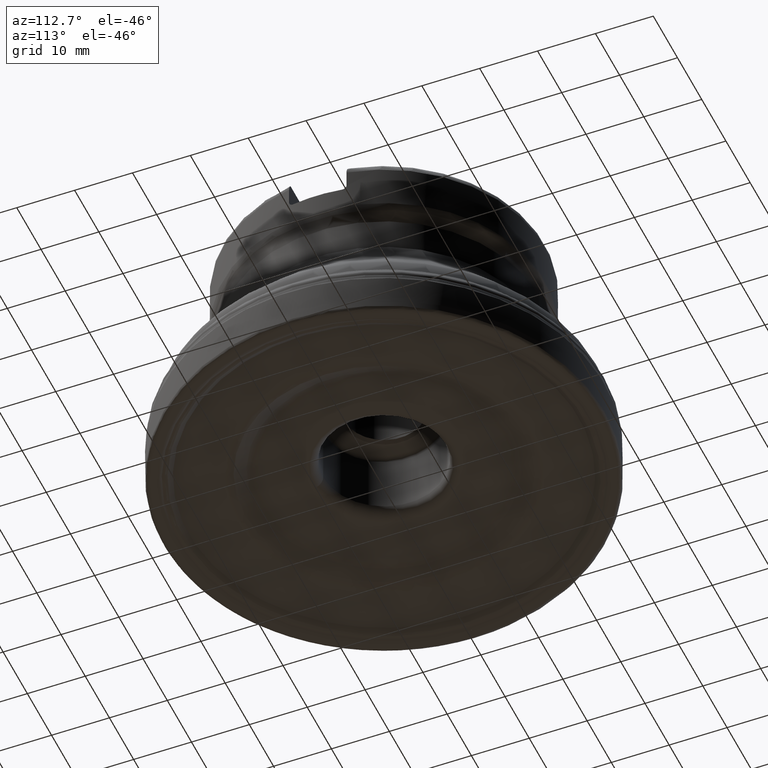
[diagram: clean part render]
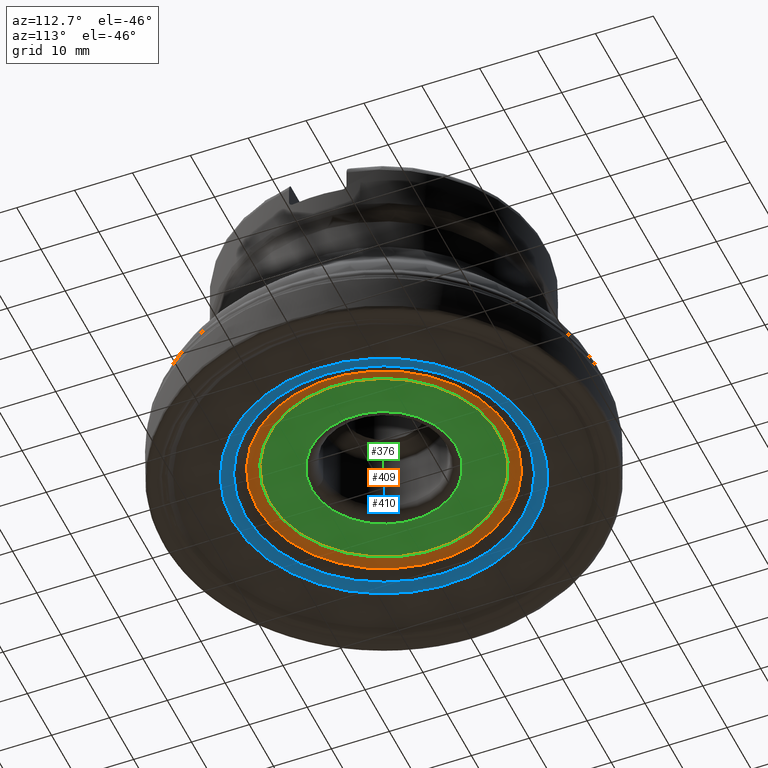
[diagram: same view with three faces highlighted in distinct colors, each labeled with its STEP entity id]
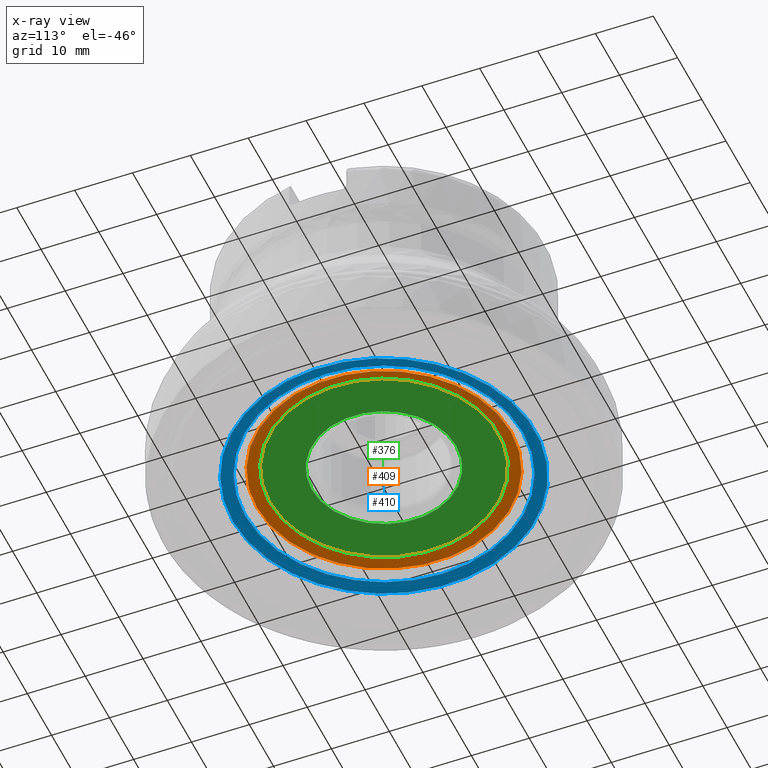
[diagram: x-ray of the same camera — body ghosted, the three highlighted faces saturated]
A machine part, auxiliary view with three faces highlighted in distinct colors.
The next image is the same camera in x-ray (body ghosted, the three faces saturated) — at least one of them is partly hidden behind the body in this view.
Their STEP definitions:

[orange] entity #409 — the highlighted toroidal blend (fillet) surface has major radius 19.817 mm and minor (blend) radius 5 mm.
#224=FACE_BOUND('',#550,.T.);
#225=FACE_BOUND('',#551,.T.);
#409=ADVANCED_FACE('',(#224,#225),#450,.F.);
#450=TOROIDAL_SURFACE('',#1290,19.8169635378171,5.);
#550=EDGE_LOOP('',(#849));
#551=EDGE_LOOP('',(#850));
#625=CIRCLE('',#1234,21.9300548465206);
#627=CIRCLE('',#1237,19.8169635378171);
#849=ORIENTED_EDGE('',*,*,#1059,.F.);
#850=ORIENTED_EDGE('',*,*,#1061,.F.);
#952=VERTEX_POINT('',#2090);
#954=VERTEX_POINT('',#2095);
#1059=EDGE_CURVE('',#952,#952,#625,.T.);
#1061=EDGE_CURVE('',#954,#954,#627,.T.);
#1234=AXIS2_PLACEMENT_3D('',#2089,#1410,#1411);
#1237=AXIS2_PLACEMENT_3D('',#2094,#1416,#1417);
#1290=AXIS2_PLACEMENT_3D('',#2279,#1534,#1535);
#1410=DIRECTION('',(0.,1.17145536458252E-15,1.));
#1411=DIRECTION('',(0.,1.,-1.16676275776472E-15));
#1416=DIRECTION('',(0.,-1.17145536458252E-15,-1.));
#1417=DIRECTION('',(0.,-1.,1.18175354569313E-15));
#1534=DIRECTION('',(0.,1.17145536458252E-15,1.));
#1535=DIRECTION('',(0.,-1.,1.1708369631254E-15));
#2089=CARTESIAN_POINT('',(0.,2.96558486626994E-15,2.53153893518324));
#2090=CARTESIAN_POINT('',(0.,21.9300548465206,2.53153893518322));
#2094=CARTESIAN_POINT('',(0.,3.51436609374757E-15,3.));
#2095=CARTESIAN_POINT('',(0.,-19.8169635378171,3.00000000000002));
#2279=CARTESIAN_POINT('',(0.,-2.34291072916505E-15,-2.));

[blue] entity #410 — the highlighted toroidal blend (fillet) surface has major radius 26.1085 mm and minor (blend) radius 5 mm.
#226=FACE_BOUND('',#552,.T.);
#227=FACE_BOUND('',#553,.T.);
#410=ADVANCED_FACE('',(#226,#227),#451,.T.);
#451=TOROIDAL_SURFACE('',#1291,26.1084733132147,5.);
#552=EDGE_LOOP('',(#851));
#553=EDGE_LOOP('',(#852));
#623=CIRCLE('',#1231,26.1084733132147);
#626=CIRCLE('',#1235,23.9953820045112);
#851=ORIENTED_EDGE('',*,*,#1057,.F.);
#852=ORIENTED_EDGE('',*,*,#1060,.F.);
#950=VERTEX_POINT('',#2085);
#953=VERTEX_POINT('',#2092);
#1057=EDGE_CURVE('',#950,#950,#623,.T.);
#1060=EDGE_CURVE('',#953,#953,#626,.T.);
#1231=AXIS2_PLACEMENT_3D('',#2084,#1404,#1405);
#1235=AXIS2_PLACEMENT_3D('',#2091,#1412,#1413);
#1291=AXIS2_PLACEMENT_3D('',#2280,#1536,#1537);
#1404=DIRECTION('',(0.,1.17145536458252E-15,1.));
#1405=DIRECTION('',(0.,-1.,1.17105664882428E-15));
#1412=DIRECTION('',(0.,-1.17145536458252E-15,-1.));
#1413=DIRECTION('',(0.,-1.,1.17477840024899E-15));
#1536=DIRECTION('',(0.,1.17145536458252E-15,1.));
#1537=DIRECTION('',(0.,-1.,1.1710376343039E-15));
#2084=CARTESIAN_POINT('',(0.,1.28860090104078E-15,1.1));
#2085=CARTESIAN_POINT('',(0.,-26.1084733132147,1.10000000000003));
#2091=CARTESIAN_POINT('',(0.,1.83738212851841E-15,1.56846106481675));
#2092=CARTESIAN_POINT('',(0.,-23.9953820045112,1.56846106481678));
#2280=CARTESIAN_POINT('',(0.,7.1458777239534E-15,6.1));

[green] entity #376 — the highlighted planar face has unit normal (0, 0, 1).
#182=FACE_BOUND('',#496,.T.);
#183=FACE_BOUND('',#497,.T.);
#291=PLANE('',#1239);
#376=ADVANCED_FACE('',(#182,#183),#291,.F.);
#496=EDGE_LOOP('',(#736));
#497=EDGE_LOOP('',(#737));
#627=CIRCLE('',#1237,19.8169635378171);
#628=CIRCLE('',#1238,12.5);
#736=ORIENTED_EDGE('',*,*,#1061,.T.);
#737=ORIENTED_EDGE('',*,*,#1062,.T.);
#954=VERTEX_POINT('',#2095);
#955=VERTEX_POINT('',#2097);
#1061=EDGE_CURVE('',#954,#954,#627,.T.);
#1062=EDGE_CURVE('',#955,#955,#628,.T.);
#1237=AXIS2_PLACEMENT_3D('',#2094,#1416,#1417);
#1238=AXIS2_PLACEMENT_3D('',#2096,#1418,#1419);
#1239=AXIS2_PLACEMENT_3D('',#2098,#1420,#1421);
#1416=DIRECTION('',(0.,-1.17145536458252E-15,-1.));
#1417=DIRECTION('',(0.,-1.,1.18175354569313E-15));
#1418=DIRECTION('',(0.,1.17145536458252E-15,1.));
#1419=DIRECTION('',(0.,-1.,1.17961196366423E-15));
#1420=DIRECTION('',(0.,1.17145536458252E-15,1.));
#1421=DIRECTION('',(0.,-1.,1.17137202715334E-15));
#2094=CARTESIAN_POINT('',(0.,3.51436609374757E-15,3.));
#2095=CARTESIAN_POINT('',(0.,-19.8169635378171,3.00000000000002));
#2096=CARTESIAN_POINT('',(0.,3.51436609374757E-15,3.));
#2097=CARTESIAN_POINT('',(0.,-12.5,3.00000000000002));
#2098=CARTESIAN_POINT('',(20.9254368510318,3.51436609374757E-15,3.));